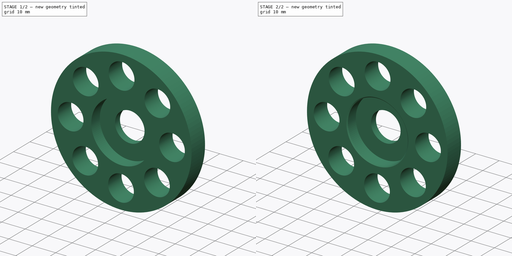
[diagram: build sequence overview — one tinted view per stage of 2, left to right]
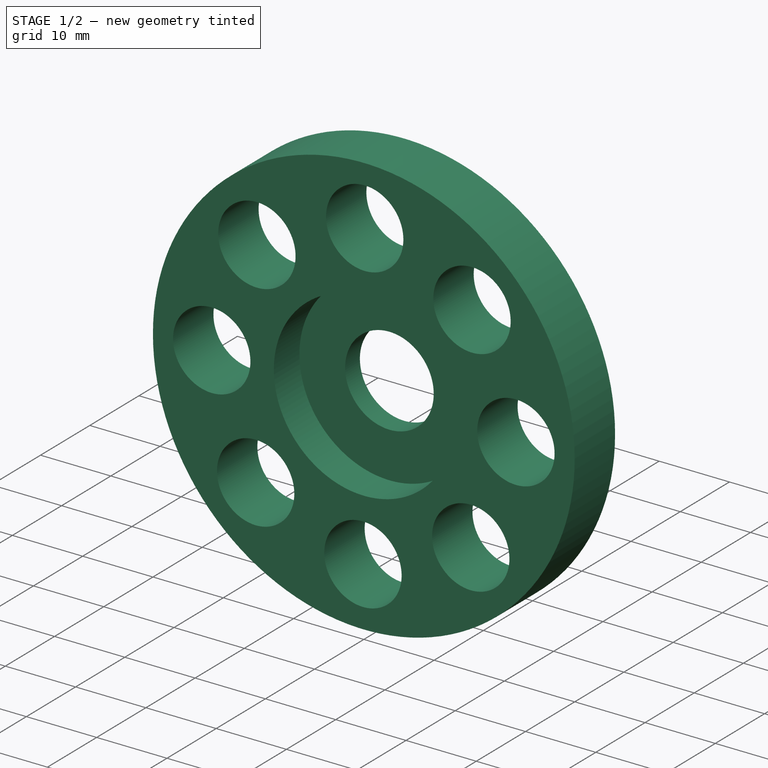
[diagram: stage 1 of 2 — iso view after this stage's code; geometry added in this stage tinted green]
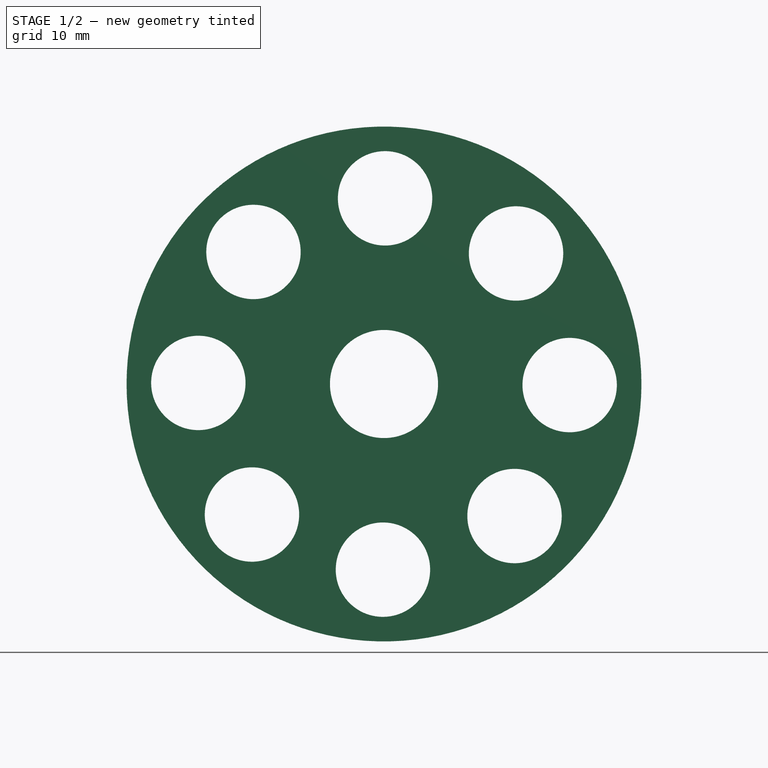
[diagram: stage 1 of 2 — front view after this stage's code; geometry added in this stage tinted green]
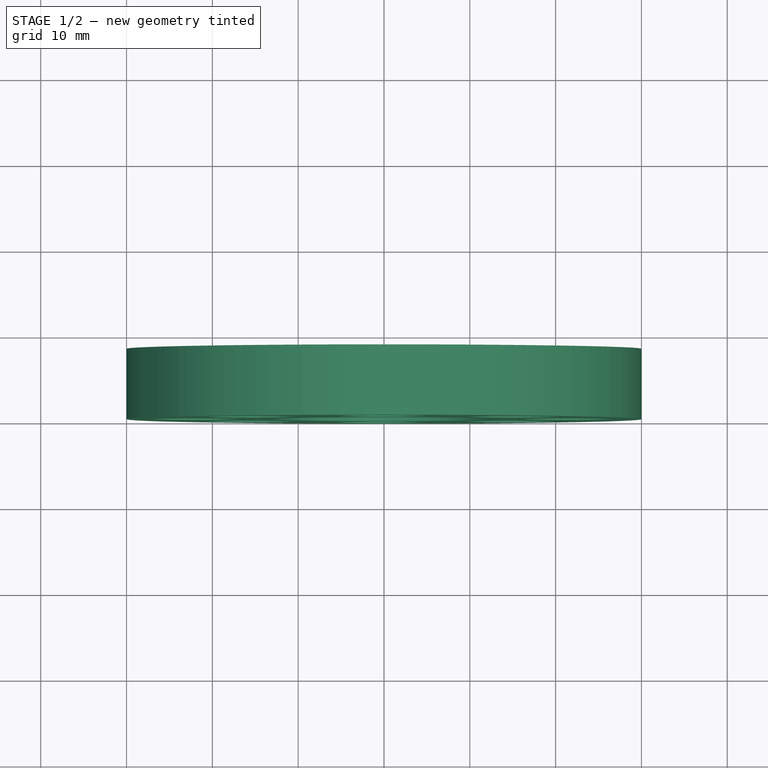
[diagram: stage 1 of 2 — top view after this stage's code; geometry added in this stage tinted green]
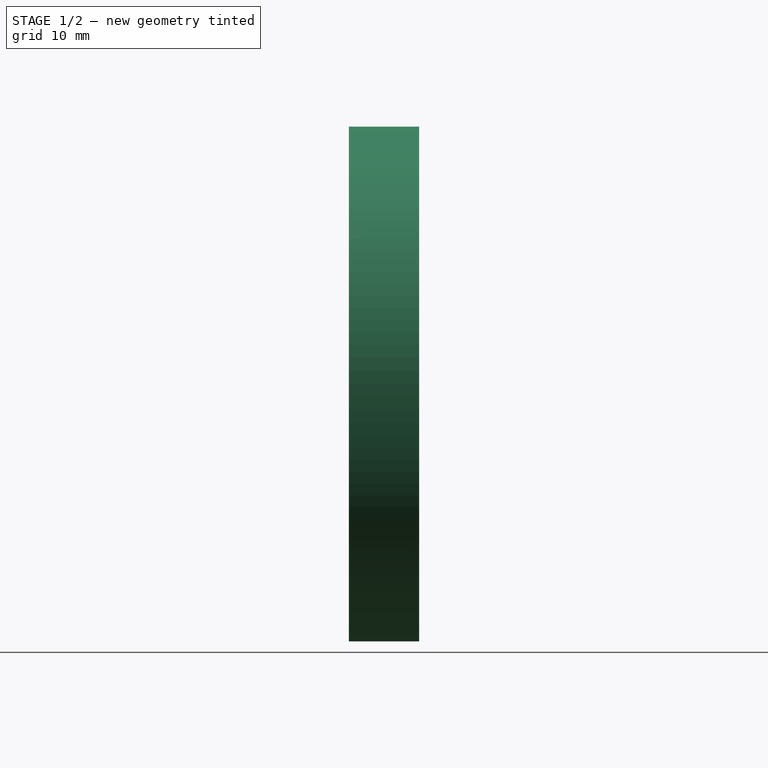
[diagram: stage 1 of 2 — right view after this stage's code; geometry added in this stage tinted green]
FCSTD DOCUMENT  (FreeCAD 0.19R24276 (Git))
Label: Tension_roller_v5_buttom_out_part
License: All rights reserved
LicenseURL: http://en.wikipedia.org/wiki/All_rights_reserved
objects: Sketcher::SketchObject×2, PartDesign::Revolution×1, PartDesign::Pocket×1, PartDesign::Chamfer×1, PartDesign::Body×1
note: 9 computed .brp shape members not serialized (recipe doc carries the construction recipe); baked Part::Feature solids carry a one-line shape summary decoded from their .brp

FEATURE [Sketcher::SketchObject] Sketch
  FullyConstrained = true
  MapMode = 5
  Support = -> [XY_Plane]
  sketch-geometry (10):
    g0: LineSegment StartX=30 StartY=0 StartZ=0 EndX=30 EndY=8.2 EndZ=0
    g1: LineSegment StartX=30 StartY=8.2 StartZ=0 EndX=12.8 EndY=8.2 EndZ=0
    g2: LineSegment StartX=12.8 StartY=8.2 StartZ=0 EndX=12.8 EndY=0 EndZ=0
    g3: LineSegment StartX=12.8 StartY=0 StartZ=0 EndX=30 EndY=0 EndZ=0
    g4: LineSegment StartX=12.8 StartY=8.2 StartZ=0 EndX=6.3 EndY=8.2 EndZ=0
    g5: LineSegment StartX=6.3 StartY=8.2 StartZ=0 EndX=6.3 EndY=5.2 EndZ=0
    g6: LineSegment StartX=6.3 StartY=5.2 StartZ=0 EndX=12.8 EndY=5.2 EndZ=0
    g7: LineSegment StartX=12.8 StartY=5.2 StartZ=0 EndX=12.8 EndY=8.2 EndZ=0
    g8: LineSegment StartX=6.3 StartY=8.2 StartZ=0 EndX=30 EndY=8.2 EndZ=0
    g9: LineSegment StartX=12.8 StartY=5.2 StartZ=0 EndX=12.8 EndY=0 EndZ=0
  constraints (27):
    c: PointOnObject(g0,g-1)
    c: Horizontal(g1)
    c: Coincident(g2,g1)
    c: PointOnObject(g2,g-1)
    c: Coincident(g3,g2)
    c: Coincident(g3,g0)
    c: Vertical(g2)
    c: Coincident(g0,g1)
    c: DistanceX(g-1,g2) = 12.8
    c: DistanceY(g2,g2) = 8.2
    c: Vertical(g0)
    c: Coincident(g4,g5)
    c: Coincident(g5,g6)
    c: Coincident(g6,g7)
    c: Coincident(g7,g4)
    c: Horizontal(g4)
    c: Horizontal(g6)
    c: Vertical(g5)
    c: Vertical(g7)
    c: Coincident(g4,g1)
    c: DistanceX(g-1,g4) = 6.3
    c: DistanceY(g5,g5) = 3
    c: Coincident(g8,g5)
    c: Coincident(g9,g6)
    c: Coincident(g9,g3)
    c: Coincident(g8,g0)
    c: DistanceX(g-1,g0) = 30
FEATURE [PartDesign::Revolution] Revolution
  Angle = 360
  Axis = (0,1,0)
  Base = (0,0,0)
  Profile = -> Sketch
  ReferenceAxis = -> Sketch [V_Axis]
  Reversed = true
FEATURE [Sketcher::SketchObject] Sketch001
  FullyConstrained = false
  MapMode = 5
  Placement = pos=(0,0,0) rot=(1,0,0;1.5708rad)
  Support = -> [Revolution]
  sketch-geometry (17):
    g0: LineSegment StartX=0.124373 StartY=21.6357 StartZ=0 EndX=-15.2108 EndY=15.3867 EndZ=0
    g1: LineSegment StartX=-15.2108 StartY=15.3867 StartZ=0 EndX=-21.6357 EndY=0.124373 EndZ=0
    g2: LineSegment StartX=-21.6357 StartY=0.124373 StartZ=0 EndX=-15.3867 EndY=-15.2108 EndZ=0
    g3: LineSegment StartX=-15.3867 StartY=-15.2108 StartZ=0 EndX=-0.124373 EndY=-21.6357 EndZ=0
    g4: LineSegment StartX=-0.124373 StartY=-21.6357 StartZ=0 EndX=15.2108 EndY=-15.3867 EndZ=0
    g5: LineSegment StartX=15.2108 StartY=-15.3867 StartZ=0 EndX=21.6357 EndY=-0.124373 EndZ=0
    g6: LineSegment StartX=21.6357 StartY=-0.124373 StartZ=0 EndX=15.3867 EndY=15.2108 EndZ=0
    g7: LineSegment StartX=15.3867 StartY=15.2108 StartZ=0 EndX=0.124373 EndY=21.6357 EndZ=0
    g8: Circle CenterX=0 CenterY=0 CenterZ=0 NormalX=0 NormalY=0 NormalZ=1 AngleXU=0 Radius=21.6361
    g9: Circle CenterX=0.124373 CenterY=21.6357 CenterZ=0 NormalX=0 NormalY=0 NormalZ=1 AngleXU=0 Radius=5.5
    g10: Circle CenterX=15.3867 CenterY=15.2108 CenterZ=0 NormalX=0 NormalY=0 NormalZ=1 AngleXU=0 Radius=5.5
    g11: Circle CenterX=21.6357 CenterY=-0.124373 CenterZ=0 NormalX=0 NormalY=0 NormalZ=1 AngleXU=0 Radius=5.5
    g12: Circle CenterX=15.2108 CenterY=-15.3867 CenterZ=0 NormalX=0 NormalY=0 NormalZ=1 AngleXU=0 Radius=5.5
    g13: Circle CenterX=-0.124373 CenterY=-21.6357 CenterZ=0 NormalX=0 NormalY=0 NormalZ=1 AngleXU=0 Radius=5.5
    g14: Circle CenterX=-15.3867 CenterY=-15.2108 CenterZ=0 NormalX=0 NormalY=0 NormalZ=1 AngleXU=0 Radius=5.5
    g15: Circle CenterX=-21.6357 CenterY=0.124373 CenterZ=0 NormalX=0 NormalY=0 NormalZ=1 AngleXU=0 Radius=5.5
    g16: Circle CenterX=-15.2108 CenterY=15.3867 CenterZ=0 NormalX=0 NormalY=0 NormalZ=1 AngleXU=0 Radius=5.5
  constraints (28):
    c: Coincident(g0,g1)
    c: Coincident(g1,g2)
    c: Coincident(g2,g3)
    c: Coincident(g3,g4)
    c: Coincident(g4,g5)
    c: Coincident(g5,g6)
    c: Coincident(g6,g7)
    c: Coincident(g7,g0)
    c: Equal(g0, g1-g7) x7
    c: PointOnObject(g0,g8)
    c: PointOnObject(g1,g8)
    c: PointOnObject(g2,g8)
    c: PointOnObject(g3,g8)
    c: PointOnObject(g4,g8)
    c: PointOnObject(g5,g8)
    c: PointOnObject(g6,g8)
    c: PointOnObject(g7,g8)
    c: Coincident(g8,g-1)
    c: Coincident(g9,g0)
    c: Coincident(g10,g6)
    c: Coincident(g11,g5)
    c: Coincident(g12,g4)
    c: Coincident(g13,g3)
    c: Coincident(g14,g2)
    c: Coincident(g15,g1)
    c: Coincident(g16,g0)
    c: Diameter(g16) = 11
    c: Equal(g16, g9-g15) x7
FEATURE [PartDesign::Pocket] Pocket
  BaseFeature = -> Revolution
  Length = 5
  Length2 = 100
  Profile = -> Sketch001
  Type = 1
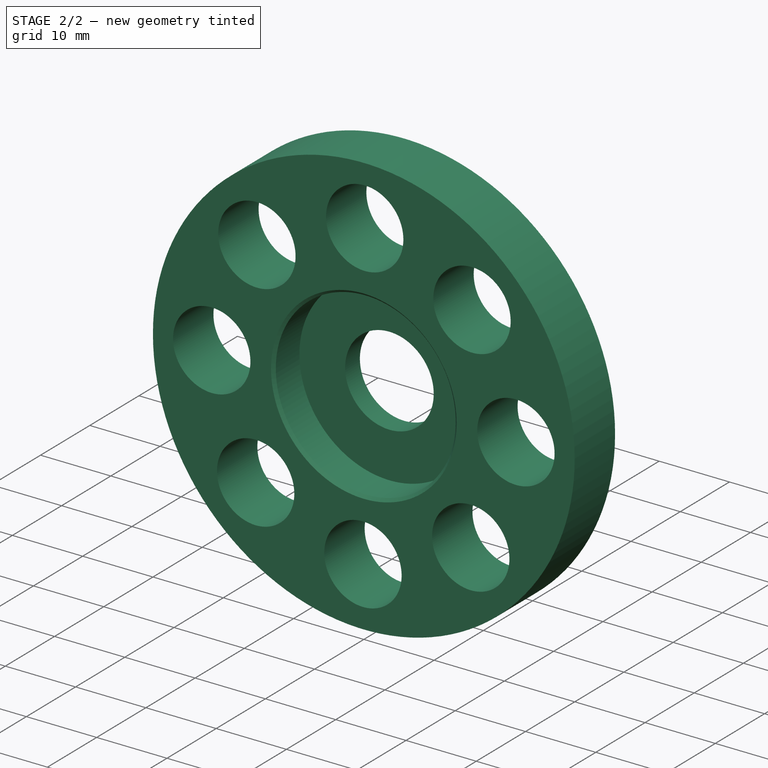
[diagram: stage 2 of 2 — iso view after this stage's code; geometry added in this stage tinted green]
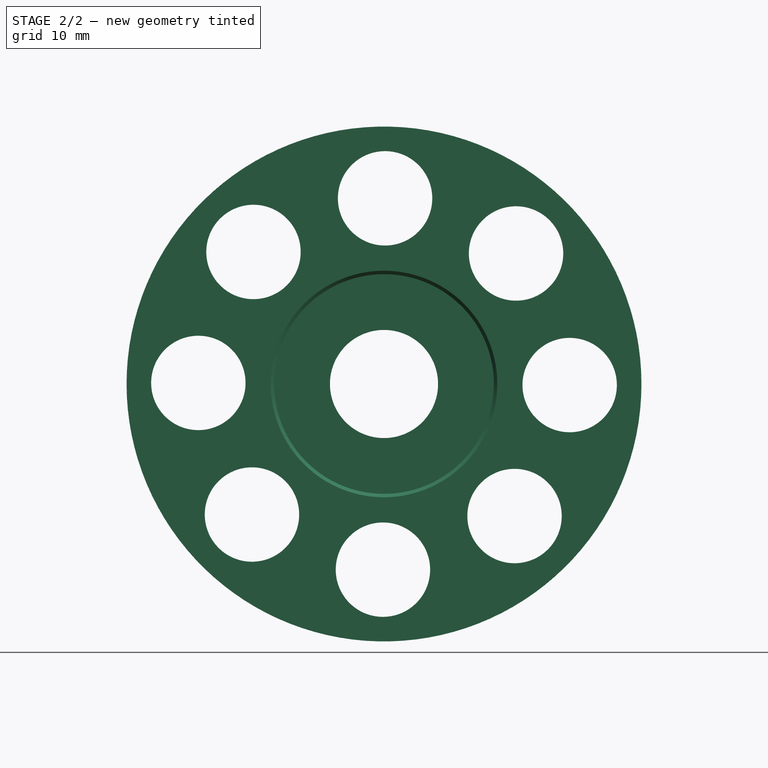
[diagram: stage 2 of 2 — front view after this stage's code; geometry added in this stage tinted green]
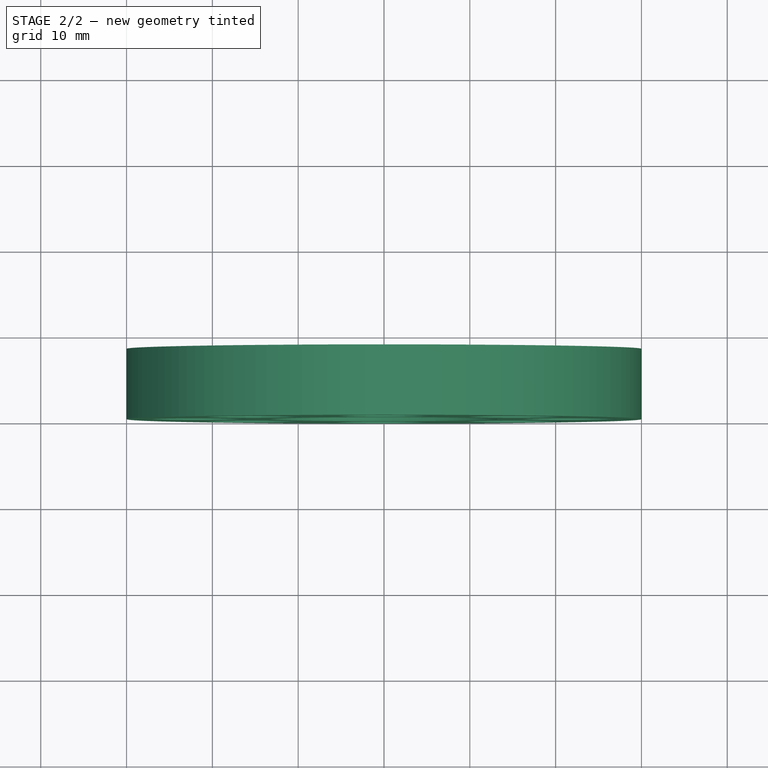
[diagram: stage 2 of 2 — top view after this stage's code; geometry added in this stage tinted green]
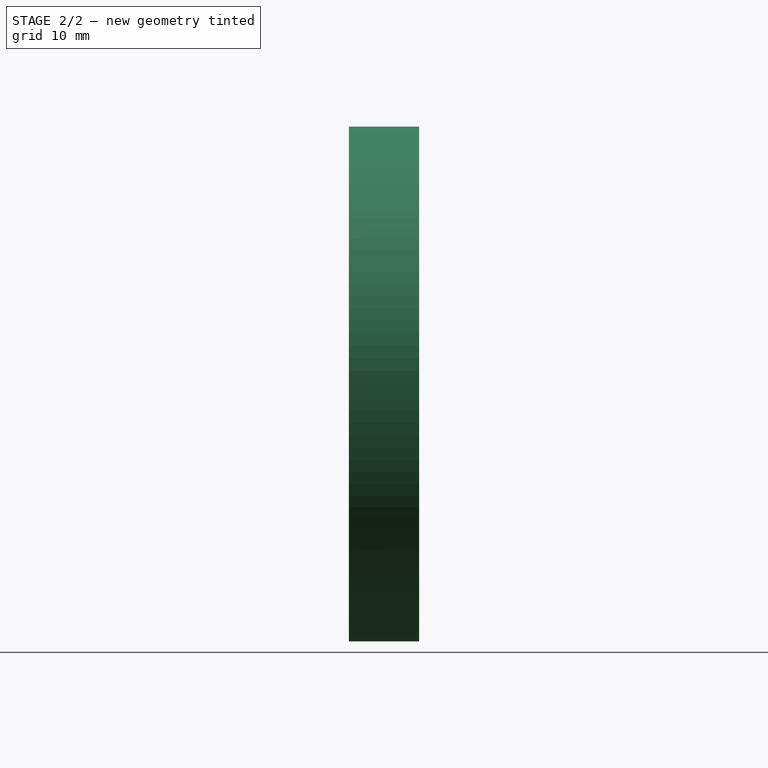
[diagram: stage 2 of 2 — right view after this stage's code; geometry added in this stage tinted green]
FEATURE [PartDesign::Chamfer] Chamfer
  Angle = 45
  Base = -> Pocket [Edge10]
  BaseFeature = -> Pocket
  ChamferType = 0
  FlipDirection = false
  Size = 0.4
  Size2 = 1
  SupportTransform = false
FEATURE [PartDesign::Body] Body
  Group = -> [Sketch,Revolution,Sketch001,Pocket,Chamfer]
  Origin = -> Origin
  Tip = -> Chamfer
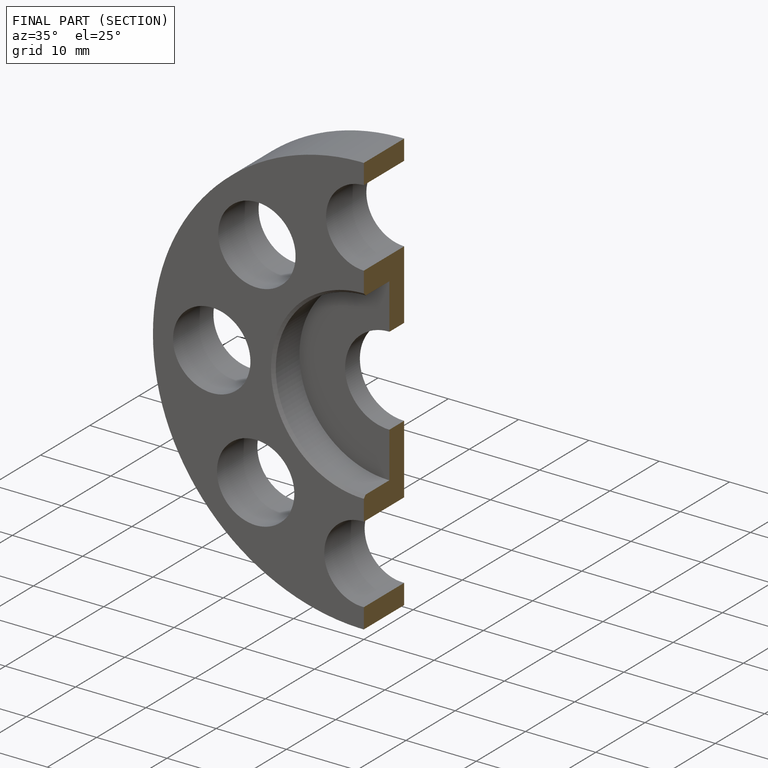
[diagram: finished part — half-section view (interior)]
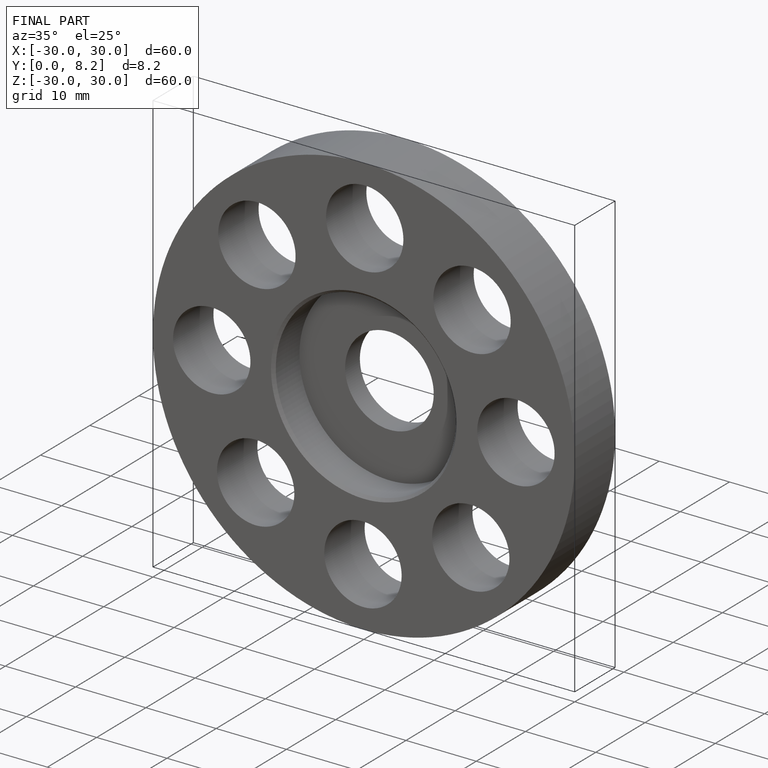
[diagram: finished part — iso view with bounding-box wireframe]
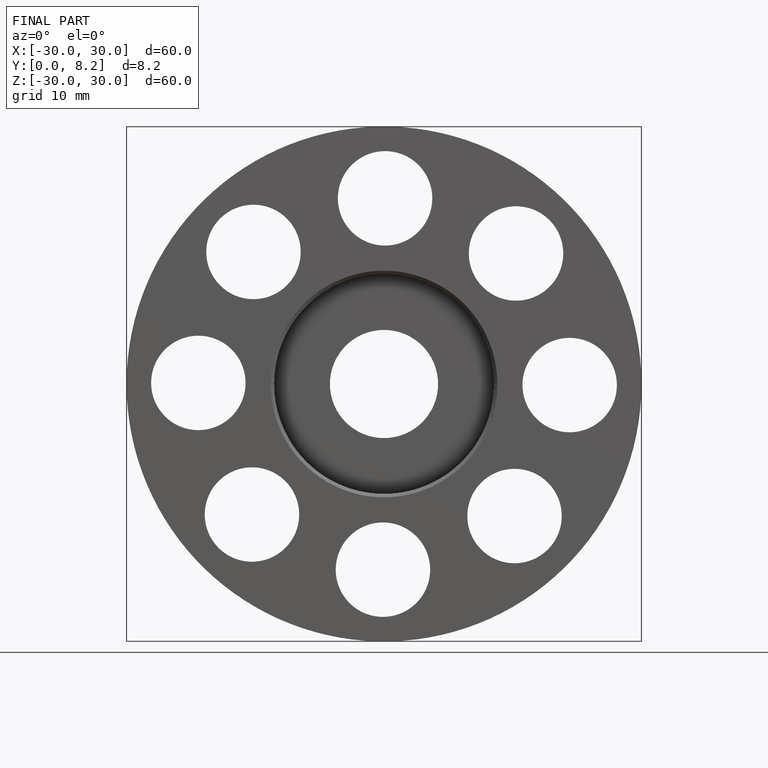
[diagram: finished part — front view with bounding-box wireframe]
